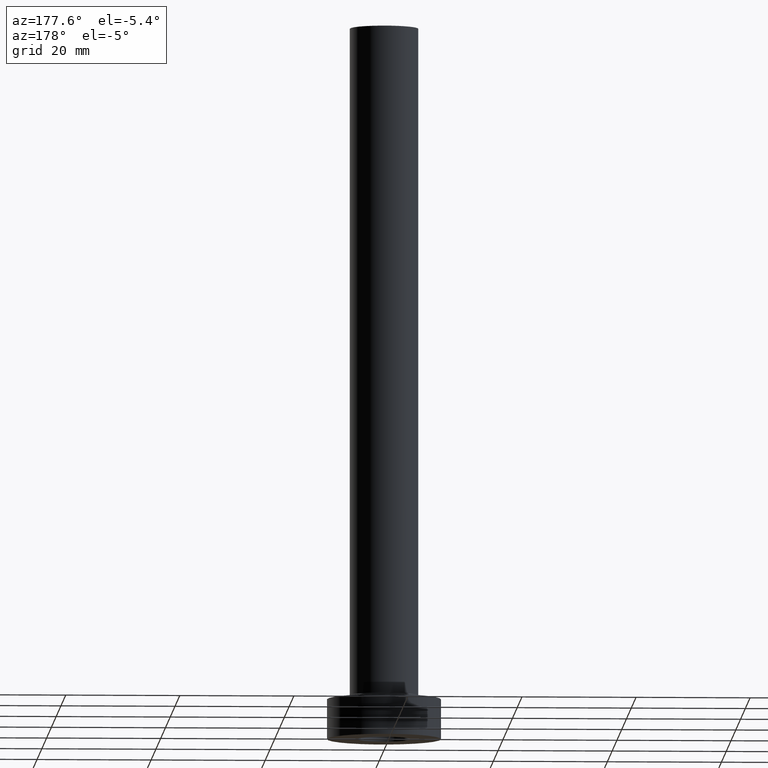
[diagram: clean part render]
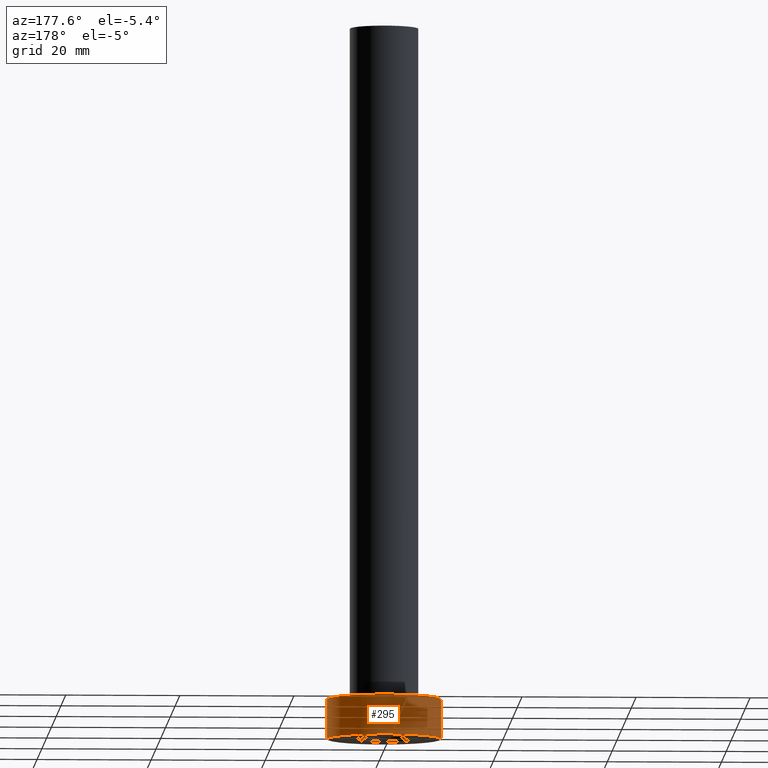
[diagram: same view with one face highlighted and labeled with its STEP entity id]
A machine part, auxiliary view. The second image highlights one B-rep face of the part: STEP entity #295.
In plain terms, the highlighted cylindrical surface (partial cylindrical patch) has radius 10 mm, axis along (-0, -0, -1).
Its self-contained STEP definition (entity closure, byte-faithful):
#19 = LINE ( 'NONE', #161, #390 ) ;
#32 = EDGE_LOOP ( 'NONE', ( #279, #126, #273, #369 ) ) ;
#33 = LINE ( 'NONE', #172, #211 ) ;
#59 = DIRECTION ( 'NONE',  ( -0.000000000000000000, -0.000000000000000000, -1.000000000000000000 ) ) ;
#67 = CARTESIAN_POINT ( 'NONE',  ( 0.000000000000000000, 0.000000000000000000, 7.000000000000000000 ) ) ;
#105 = CARTESIAN_POINT ( 'NONE',  ( 0.000000000000000000, 0.000000000000000000, 0.000000000000000000 ) ) ;
#126 = ORIENTED_EDGE ( 'NONE', *, *, #356, .T. ) ;
#135 = CARTESIAN_POINT ( 'NONE',  ( -10.00000000000000000, 0.000000000000000000, 0.000000000000000000 ) ) ;
#140 = DIRECTION ( 'NONE',  ( -1.000000000000000000, 0.000000000000000000, 0.000000000000000000 ) ) ;
#156 = EDGE_CURVE ( 'NONE', #191, #375, #455, .T. ) ;
#161 = CARTESIAN_POINT ( 'NONE',  ( -10.00000000000000000, 0.000000000000000000, 7.000000000000000000 ) ) ;
#172 = CARTESIAN_POINT ( 'NONE',  ( 10.00000000000000000, 1.224646799147353256E-15, 7.000000000000000000 ) ) ;
#177 = CARTESIAN_POINT ( 'NONE',  ( 10.00000000000000000, 1.224646799147353256E-15, 0.000000000000000000 ) ) ;
#191 = VERTEX_POINT ( 'NONE', #177 ) ;
#208 = VERTEX_POINT ( 'NONE', #291 ) ;
#211 = VECTOR ( 'NONE', #59, 1000.000000000000000 ) ;
#240 = AXIS2_PLACEMENT_3D ( 'NONE', #105, #248, #417 ) ;
#248 = DIRECTION ( 'NONE',  ( 0.000000000000000000, 0.000000000000000000, 1.000000000000000000 ) ) ;
#250 = AXIS2_PLACEMENT_3D ( 'NONE', #67, #376, #140 ) ;
#253 = EDGE_CURVE ( 'NONE', #327, #375, #19, .T. ) ;
#257 = CIRCLE ( 'NONE', #284, 10.00000000000000000 ) ;
#266 = FACE_OUTER_BOUND ( 'NONE', #32, .T. ) ;
#269 = CYLINDRICAL_SURFACE ( 'NONE', #250, 10.00000000000000000 ) ;
#273 = ORIENTED_EDGE ( 'NONE', *, *, #156, .T. ) ;
#275 = DIRECTION ( 'NONE',  ( -0.000000000000000000, -0.000000000000000000, -1.000000000000000000 ) ) ;
#279 = ORIENTED_EDGE ( 'NONE', *, *, #442, .F. ) ;
#284 = AXIS2_PLACEMENT_3D ( 'NONE', #421, #387, #290 ) ;
#290 = DIRECTION ( 'NONE',  ( 1.000000000000000000, 0.000000000000000000, 0.000000000000000000 ) ) ;
#291 = CARTESIAN_POINT ( 'NONE',  ( 10.00000000000000000, 1.224646799147353256E-15, 7.000000000000000000 ) ) ;
#295 = ADVANCED_FACE ( 'NONE', ( #266 ), #269, .T. ) ;
#327 = VERTEX_POINT ( 'NONE', #409 ) ;
#356 = EDGE_CURVE ( 'NONE', #208, #191, #33, .T. ) ;
#369 = ORIENTED_EDGE ( 'NONE', *, *, #253, .F. ) ;
#375 = VERTEX_POINT ( 'NONE', #135 ) ;
#376 = DIRECTION ( 'NONE',  ( -0.000000000000000000, -0.000000000000000000, -1.000000000000000000 ) ) ;
#387 = DIRECTION ( 'NONE',  ( 0.000000000000000000, 0.000000000000000000, 1.000000000000000000 ) ) ;
#390 = VECTOR ( 'NONE', #275, 1000.000000000000000 ) ;
#409 = CARTESIAN_POINT ( 'NONE',  ( -10.00000000000000000, 0.000000000000000000, 7.000000000000000000 ) ) ;
#417 = DIRECTION ( 'NONE',  ( 1.000000000000000000, 0.000000000000000000, 0.000000000000000000 ) ) ;
#421 = CARTESIAN_POINT ( 'NONE',  ( 0.000000000000000000, 0.000000000000000000, 7.000000000000000000 ) ) ;
#442 = EDGE_CURVE ( 'NONE', #208, #327, #257, .T. ) ;
#455 = CIRCLE ( 'NONE', #240, 10.00000000000000000 ) ;